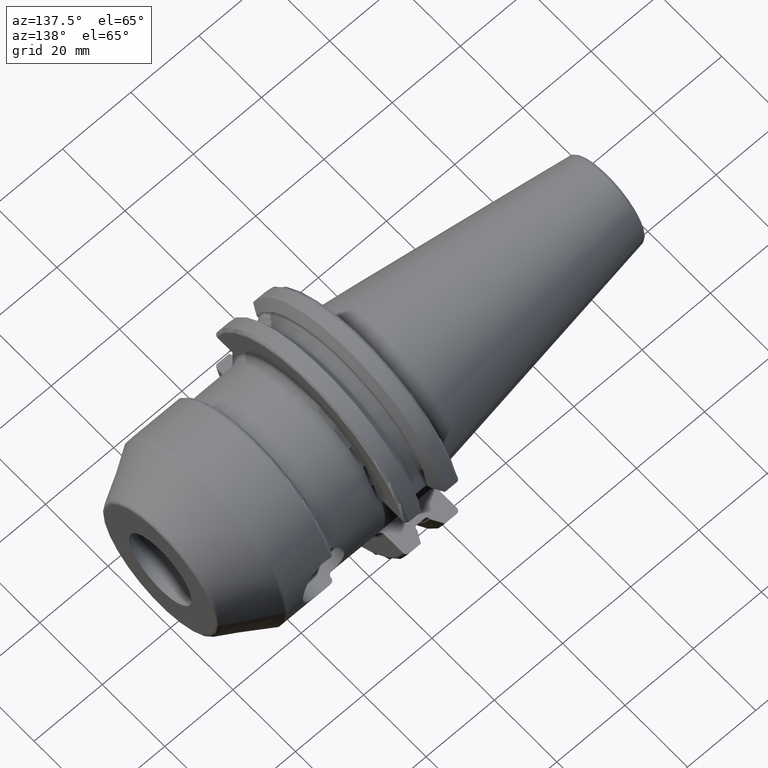
[diagram: clean part render]
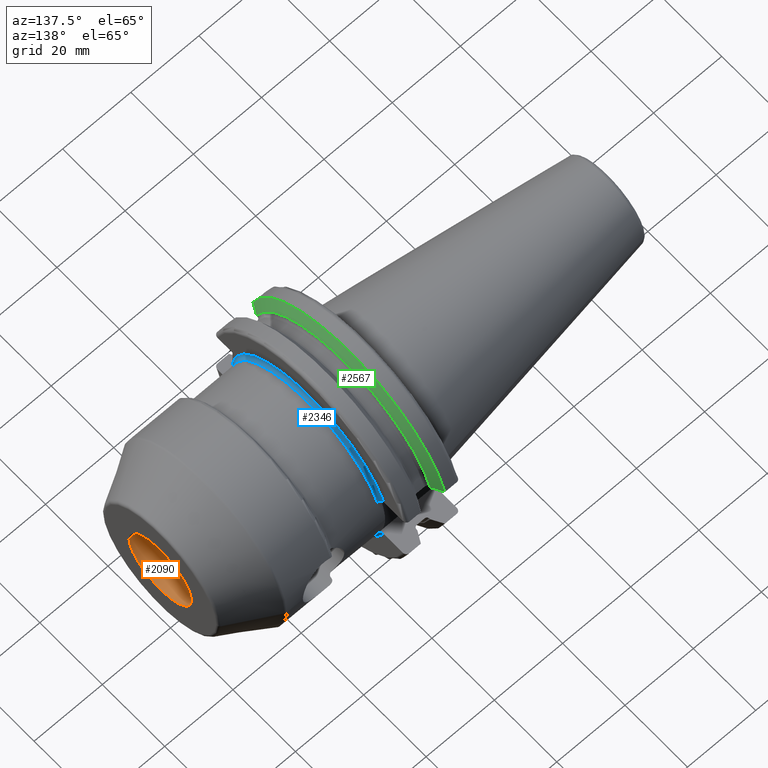
[diagram: same view with three faces highlighted in distinct colors, each labeled with its STEP entity id]
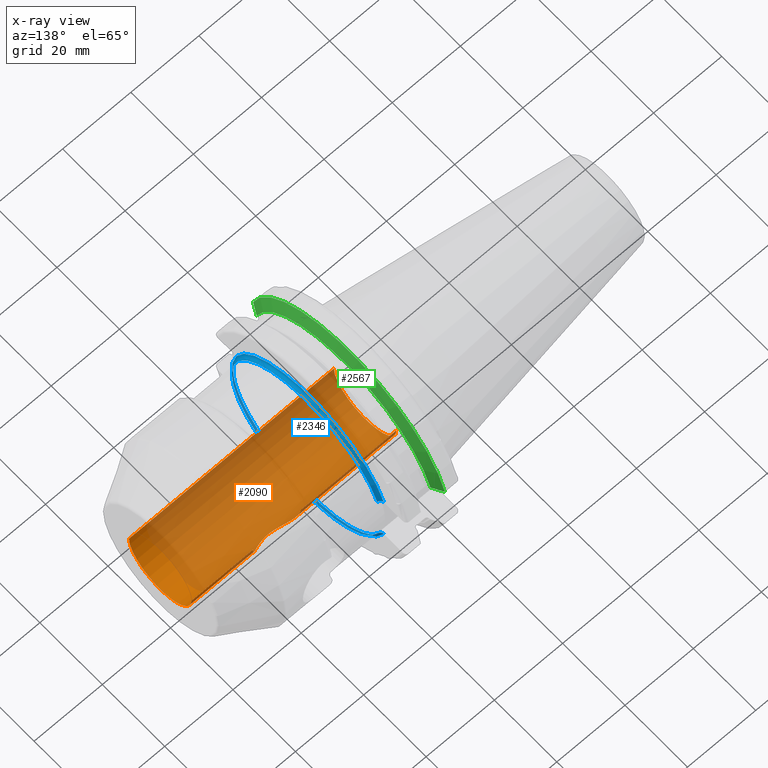
[diagram: x-ray of the same camera — body ghosted, the three highlighted faces saturated]
A machine part, auxiliary view with three faces highlighted in distinct colors.
The next image is the same camera in x-ray (body ghosted, the three faces saturated) — at least one of them is partly hidden behind the body in this view.
Their STEP definitions:

[orange] entity #2090 — the highlighted cylindrical surface (partial cylindrical patch) has radius 10 mm, axis along (1, 0, 0).
#239=CARTESIAN_POINT('',(4.5E1,1.E1,0.E0));
#240=CARTESIAN_POINT('',(4.5E1,1.E1,-3.703224298246E-1));
#241=CARTESIAN_POINT('',(4.494147063933E1,9.958906118185E0,-1.095680688712E0));
#242=CARTESIAN_POINT('',(4.469601184072E1,9.788746908600E0,-2.127587483447E0));
#243=CARTESIAN_POINT('',(4.430984592329E1,9.527647535539E0,-3.089229727453E0));
#244=CARTESIAN_POINT('',(4.378238289719E1,9.185081224078E0,-3.991672600885E0));
#245=CARTESIAN_POINT('',(4.311296868130E1,8.776233688908E0,-4.821587539095E0));
#246=CARTESIAN_POINT('',(4.230201367060E1,8.326177957875E0,-5.558345521736E0));
#247=CARTESIAN_POINT('',(4.138012892757E1,7.884534854530E0,-6.163259870751E0));
#248=CARTESIAN_POINT('',(4.037482626050E1,7.505854408624E0,-6.613427623373E0));
#249=CARTESIAN_POINT('',(3.939322754161E1,7.255183657761E0,-6.883550308105E0));
#250=CARTESIAN_POINT('',(3.843208182535E1,7.133705896825E0,-7.007913250445E0));
#251=CARTESIAN_POINT('',(3.749670615165E1,7.138483185376E0,-7.003106643688E0));
#252=CARTESIAN_POINT('',(3.653871609954E1,7.268805123473E0,-6.869324047158E0));
#253=CARTESIAN_POINT('',(3.556135667698E1,7.526582647206E0,-6.590113990308E0));
#254=CARTESIAN_POINT('',(3.456226557871E1,7.909825888494E0,-6.131015878061E0));
#255=CARTESIAN_POINT('',(3.365354265831E1,8.349678313057E0,-5.522841056459E0));
#256=CARTESIAN_POINT('',(3.285802596632E1,8.793448388434E0,-4.789600230951E0));
#257=CARTESIAN_POINT('',(3.220089983605E1,9.195748864548E0,-3.966336721616E0));
#258=CARTESIAN_POINT('',(3.168145650558E1,9.533464318839E0,-3.070524890406E0));
#259=CARTESIAN_POINT('',(3.130004665180E1,9.791464534561E0,-2.114114874014E0));
#260=CARTESIAN_POINT('',(3.105773501514E1,9.959465672025E0,-1.088346573293E0));
#261=CARTESIAN_POINT('',(3.1E1,1.E1,-3.677950298425E-1));
#262=CARTESIAN_POINT('',(3.1E1,1.E1,0.E0));
#264=DIRECTION('',(-1.E0,0.E0,0.E0));
#265=VECTOR('',#264,1.8E1);
#266=CARTESIAN_POINT('',(6.3E1,1.E1,0.E0));
#267=LINE('',#266,#265);
#268=DIRECTION('',(-1.E0,0.E0,0.E0));
#269=VECTOR('',#268,6.01E1);
#270=CARTESIAN_POINT('',(6.3E1,-1.E1,0.E0));
#271=LINE('',#270,#269);
#272=DIRECTION('',(-1.E0,0.E0,0.E0));
#273=VECTOR('',#272,2.81E1);
#274=CARTESIAN_POINT('',(3.1E1,1.E1,0.E0));
#275=LINE('',#274,#273);
#276=CARTESIAN_POINT('',(3.1E1,1.E1,0.E0));
#298=CARTESIAN_POINT('',(4.5E1,1.E1,0.E0));
#300=CARTESIAN_POINT('',(2.9E0,0.E0,0.E0));
#301=DIRECTION('',(-1.E0,0.E0,0.E0));
#302=DIRECTION('',(0.E0,1.E0,0.E0));
#303=AXIS2_PLACEMENT_3D('',#300,#301,#302);
#315=CARTESIAN_POINT('',(6.3E1,0.E0,0.E0));
#316=DIRECTION('',(1.E0,0.E0,0.E0));
#317=DIRECTION('',(0.E0,-1.E0,0.E0));
#318=AXIS2_PLACEMENT_3D('',#315,#316,#317);
#1684=CARTESIAN_POINT('',(2.9E0,1.E1,0.E0));
#1685=CARTESIAN_POINT('',(2.9E0,-1.E1,0.E0));
#1686=VERTEX_POINT('',#1684);
#1687=VERTEX_POINT('',#1685);
#1688=CARTESIAN_POINT('',(6.3E1,1.E1,0.E0));
#1689=CARTESIAN_POINT('',(6.3E1,-1.E1,0.E0));
#1690=VERTEX_POINT('',#1688);
#1691=VERTEX_POINT('',#1689);
#1720=VERTEX_POINT('',#276);
#1721=VERTEX_POINT('',#298);
#2072=CARTESIAN_POINT('',(-1.05E-1,0.E0,0.E0));
#2073=DIRECTION('',(1.E0,0.E0,0.E0));
#2074=DIRECTION('',(0.E0,-1.E0,0.E0));
#2075=AXIS2_PLACEMENT_3D('',#2072,#2073,#2074);
#2076=CYLINDRICAL_SURFACE('',#2075,1.E1);
#2077=ORIENTED_EDGE('',*,*,#2060,.F.);
#2079=ORIENTED_EDGE('',*,*,#2078,.F.);
#2081=ORIENTED_EDGE('',*,*,#2080,.F.);
#2083=ORIENTED_EDGE('',*,*,#2082,.T.);
#2085=ORIENTED_EDGE('',*,*,#2084,.F.);
#2087=ORIENTED_EDGE('',*,*,#2086,.F.);
#2088=EDGE_LOOP('',(#2077,#2079,#2081,#2083,#2085,#2087));
#2089=FACE_OUTER_BOUND('',#2088,.F.);
#2090=ADVANCED_FACE('',(#2089),#2076,.F.);
#263=B_SPLINE_CURVE_WITH_KNOTS('',3,(#239,#240,#241,#242,#243,#244,#245,#246,
#247,#248,#249,#250,#251,#252,#253,#254,#255,#256,#257,#258,#259,#260,#261,
#262),.UNSPECIFIED.,.F.,.F.,(4,1,1,1,1,1,1,1,1,1,1,1,1,1,1,1,1,1,1,1,1,4),(0.E0,
4.761904761905E-2,9.523809523810E-2,1.428571428571E-1,1.904761904762E-1,
2.380952380952E-1,2.857142857143E-1,3.333333333333E-1,3.809523809524E-1,
4.285714285714E-1,4.761904761905E-1,5.238095238095E-1,5.714285714286E-1,
6.190476190476E-1,6.666666666667E-1,7.142857142857E-1,7.619047619048E-1,
8.095238095238E-1,8.571428571429E-1,9.047619047619E-1,9.523809523810E-1,1.E0),
.UNSPECIFIED.);
#304=CIRCLE('',#303,1.E1);
#319=CIRCLE('',#318,1.E1);
#2060=EDGE_CURVE('',#1721,#1720,#263,.T.);
#2078=EDGE_CURVE('',#1690,#1721,#267,.T.);
#2080=EDGE_CURVE('',#1691,#1690,#319,.T.);
#2082=EDGE_CURVE('',#1691,#1687,#271,.T.);
#2084=EDGE_CURVE('',#1686,#1687,#304,.T.);
#2086=EDGE_CURVE('',#1720,#1686,#275,.T.);

[blue] entity #2346 — the highlighted toroidal blend (fillet) surface has major radius 25 mm and minor (blend) radius 1 mm.
#162=CARTESIAN_POINT('',(2.005E1,0.E0,0.E0));
#163=DIRECTION('',(1.E0,0.E0,0.E0));
#164=DIRECTION('',(0.E0,9.413255281782E-1,3.375E-1));
#165=AXIS2_PLACEMENT_3D('',#162,#163,#164);
#399=CARTESIAN_POINT('',(2.005E1,0.E0,0.E0));
#400=DIRECTION('',(1.E0,0.E0,0.E0));
#401=DIRECTION('',(0.E0,-1.E0,0.E0));
#402=AXIS2_PLACEMENT_3D('',#399,#400,#401);
#425=CARTESIAN_POINT('',(1.905E1,0.E0,0.E0));
#426=DIRECTION('',(1.E0,0.E0,0.E0));
#427=DIRECTION('',(0.E0,-9.939928690460E-1,-1.094448549989E-1));
#428=AXIS2_PLACEMENT_3D('',#425,#426,#427);
#458=CARTESIAN_POINT('',(1.905E1,0.E0,0.E0));
#459=DIRECTION('',(1.E0,0.E0,0.E0));
#460=DIRECTION('',(0.E0,9.460570807303E-1,3.24E-1));
#461=AXIS2_PLACEMENT_3D('',#458,#459,#460);
#467=CARTESIAN_POINT('',(2.005E1,2.259181267628E1,-8.1E0));
#468=CARTESIAN_POINT('',(1.996471559679E1,2.259181267628E1,-8.1E0));
#469=CARTESIAN_POINT('',(1.979872990014E1,2.261366886611E1,-8.1E0));
#470=CARTESIAN_POINT('',(1.954992991274E1,2.271974591536E1,-8.1E0));
#471=CARTESIAN_POINT('',(1.934199978608E1,2.288730200111E1,-8.1E0));
#472=CARTESIAN_POINT('',(1.917951445041E1,2.310525621382E1,-8.1E0));
#473=CARTESIAN_POINT('',(1.907329022132E1,2.337183787163E1,-8.1E0));
#474=CARTESIAN_POINT('',(1.905E1,2.355574199375E1,-8.1E0));
#475=CARTESIAN_POINT('',(1.905E1,2.365142701826E1,-8.1E0));
#477=CARTESIAN_POINT('',(1.905E1,-2.484999615226E1,-2.735083155832E0));
#478=CARTESIAN_POINT('',(1.905E1,-2.484999615226E1,-2.126118093178E0));
#479=CARTESIAN_POINT('',(1.906190707528E1,-2.485000062129E1,
-9.087239020907E-1));
#480=CARTESIAN_POINT('',(1.906190711665E1,-2.485000359708E1,9.099307624885E-1));
#481=CARTESIAN_POINT('',(1.905E1,-2.484999119261E1,2.122483506519E0));
#482=CARTESIAN_POINT('',(1.905E1,-2.484999119261E1,2.731450319914E0));
#484=CARTESIAN_POINT('',(1.905E1,2.365142701826E1,8.1E0));
#485=CARTESIAN_POINT('',(1.905E1,2.355574199375E1,8.1E0));
#486=CARTESIAN_POINT('',(1.907329022132E1,2.337183787163E1,8.1E0));
#487=CARTESIAN_POINT('',(1.917951445041E1,2.310525621382E1,8.1E0));
#488=CARTESIAN_POINT('',(1.934199978608E1,2.288730200111E1,8.1E0));
#489=CARTESIAN_POINT('',(1.954992991274E1,2.271974591536E1,8.1E0));
#490=CARTESIAN_POINT('',(1.979872990014E1,2.261366886611E1,8.1E0));
#491=CARTESIAN_POINT('',(1.996471559679E1,2.259181267628E1,8.1E0));
#492=CARTESIAN_POINT('',(2.005E1,2.259181267628E1,8.1E0));
#1728=CARTESIAN_POINT('',(1.905E1,-2.484999615226E1,-2.735083155832E0));
#1729=VERTEX_POINT('',#1728);
#1730=CARTESIAN_POINT('',(1.905E1,-2.484999119261E1,2.731450319914E0));
#1731=VERTEX_POINT('',#1730);
#1736=CARTESIAN_POINT('',(1.905E1,2.365142701826E1,8.1E0));
#1737=VERTEX_POINT('',#1736);
#1738=CARTESIAN_POINT('',(1.905E1,2.365142701826E1,-8.1E0));
#1739=VERTEX_POINT('',#1738);
#1740=VERTEX_POINT('',#492);
#1741=VERTEX_POINT('',#467);
#1742=CARTESIAN_POINT('',(2.005E1,-2.4E1,0.E0));
#1743=VERTEX_POINT('',#1742);
#2332=CARTESIAN_POINT('',(2.005E1,0.E0,0.E0));
#2333=DIRECTION('',(1.E0,0.E0,0.E0));
#2334=DIRECTION('',(0.E0,1.485959642860E-3,-9.999988959614E-1));
#2335=AXIS2_PLACEMENT_3D('',#2332,#2333,#2334);
#2336=TOROIDAL_SURFACE('',#2335,2.5E1,1.E0);
#2337=ORIENTED_EDGE('',*,*,#1990,.T.);
#2338=ORIENTED_EDGE('',*,*,#2225,.T.);
#2339=ORIENTED_EDGE('',*,*,#2240,.T.);
#2340=ORIENTED_EDGE('',*,*,#2279,.F.);
#2341=ORIENTED_EDGE('',*,*,#2320,.T.);
#2342=ORIENTED_EDGE('',*,*,#2309,.F.);
#2343=ORIENTED_EDGE('',*,*,#1947,.T.);
#2344=EDGE_LOOP('',(#2337,#2338,#2339,#2340,#2341,#2342,#2343));
#2345=FACE_OUTER_BOUND('',#2344,.F.);
#2346=ADVANCED_FACE('',(#2345),#2336,.F.);
#166=CIRCLE('',#165,2.4E1);
#403=CIRCLE('',#402,2.4E1);
#429=CIRCLE('',#428,2.5E1);
#462=CIRCLE('',#461,2.5E1);
#476=B_SPLINE_CURVE_WITH_KNOTS('',3,(#467,#468,#469,#470,#471,#472,#473,#474,
#475),.UNSPECIFIED.,.F.,.F.,(4,1,1,1,1,1,4),(0.E0,1.666666666667E-1,
3.333333333333E-1,5.E-1,6.666666666667E-1,8.333333333333E-1,1.E0),
.UNSPECIFIED.);
#483=B_SPLINE_CURVE_WITH_KNOTS('',3,(#477,#478,#479,#480,#481,#482),
.UNSPECIFIED.,.F.,.F.,(4,1,1,4),(0.E0,3.333333333333E-1,6.666666666667E-1,1.E0),
.UNSPECIFIED.);
#493=B_SPLINE_CURVE_WITH_KNOTS('',3,(#484,#485,#486,#487,#488,#489,#490,#491,
#492),.UNSPECIFIED.,.F.,.F.,(4,1,1,1,1,1,4),(0.E0,1.666666666667E-1,
3.333333333333E-1,5.E-1,6.666666666667E-1,8.333333333333E-1,1.E0),
.UNSPECIFIED.);
#1947=EDGE_CURVE('',#1737,#1740,#493,.T.);
#1990=EDGE_CURVE('',#1740,#1743,#166,.T.);
#2225=EDGE_CURVE('',#1743,#1741,#403,.T.);
#2240=EDGE_CURVE('',#1741,#1739,#476,.T.);
#2279=EDGE_CURVE('',#1729,#1739,#429,.T.);
#2309=EDGE_CURVE('',#1737,#1731,#462,.T.);
#2320=EDGE_CURVE('',#1729,#1731,#483,.T.);

[green] entity #2567 — the highlighted conical surface has half-angle 60 deg.
#502=CARTESIAN_POINT('',(9.2625E0,0.E0,0.E0));
#503=DIRECTION('',(1.E0,0.E0,0.E0));
#504=DIRECTION('',(0.E0,9.600957415706E-1,2.796715341576E-1));
#505=AXIS2_PLACEMENT_3D('',#502,#503,#504);
#662=CARTESIAN_POINT('',(7.645946479578E0,0.E0,0.E0));
#663=DIRECTION('',(1.E0,0.E0,0.E0));
#664=DIRECTION('',(0.E0,9.669363825036E-1,2.550177095632E-1));
#665=AXIS2_PLACEMENT_3D('',#662,#663,#664);
#689=CARTESIAN_POINT('',(7.645946479578E0,3.071231684927E1,8.1E0));
#690=CARTESIAN_POINT('',(7.831754864835E0,3.037948258059E1,8.1E0));
#691=CARTESIAN_POINT('',(8.199252814970E0,2.972048825911E1,8.1E0));
#692=CARTESIAN_POINT('',(8.738047920141E0,2.875212438619E1,8.1E0));
#693=CARTESIAN_POINT('',(9.089058006747E0,2.811971443922E1,8.1E0));
#694=CARTESIAN_POINT('',(9.2625E0,2.780681820245E1,8.1E0));
#696=CARTESIAN_POINT('',(9.2625E0,-2.780681820245E1,8.1E0));
#697=CARTESIAN_POINT('',(9.089138247115E0,-2.811956968242E1,8.1E0));
#698=CARTESIAN_POINT('',(8.738235514848E0,-2.875178670793E1,8.1E0));
#699=CARTESIAN_POINT('',(8.199445066245E0,-2.972014324708E1,8.1E0));
#700=CARTESIAN_POINT('',(7.831837395590E0,-3.037933474515E1,8.1E0));
#701=CARTESIAN_POINT('',(7.645946479578E0,-3.071231684927E1,8.1E0));
#1543=CARTESIAN_POINT('',(9.2625E0,2.780681820245E1,8.1E0));
#1545=VERTEX_POINT('',#1543);
#1555=CARTESIAN_POINT('',(9.2625E0,-2.780681820245E1,8.1E0));
#1557=VERTEX_POINT('',#1555);
#1597=VERTEX_POINT('',#689);
#1598=VERTEX_POINT('',#701);
#2555=CARTESIAN_POINT('',(8.454223239789E0,0.E0,0.E0));
#2556=DIRECTION('',(-1.E0,0.E0,0.E0));
#2557=DIRECTION('',(0.E0,1.E0,0.E0));
#2558=AXIS2_PLACEMENT_3D('',#2555,#2556,#2557);
#2559=CONICAL_SURFACE('',#2558,3.036252358474E1,6.E1);
#2560=ORIENTED_EDGE('',*,*,#1967,.T.);
#2561=ORIENTED_EDGE('',*,*,#2391,.T.);
#2563=ORIENTED_EDGE('',*,*,#2562,.T.);
#2564=ORIENTED_EDGE('',*,*,#2532,.F.);
#2565=EDGE_LOOP('',(#2560,#2561,#2563,#2564));
#2566=FACE_OUTER_BOUND('',#2565,.F.);
#2567=ADVANCED_FACE('',(#2566),#2559,.T.);
#506=CIRCLE('',#505,2.896254716948E1);
#666=CIRCLE('',#665,3.17625E1);
#695=B_SPLINE_CURVE_WITH_KNOTS('',3,(#689,#690,#691,#692,#693,#694),
.UNSPECIFIED.,.F.,.F.,(4,1,1,4),(0.E0,3.333333333333E-1,6.666666666667E-1,1.E0),
.UNSPECIFIED.);
#702=B_SPLINE_CURVE_WITH_KNOTS('',3,(#696,#697,#698,#699,#700,#701),
.UNSPECIFIED.,.F.,.F.,(4,1,1,4),(0.E0,3.333333333333E-1,6.666666666667E-1,1.E0),
.UNSPECIFIED.);
#1967=EDGE_CURVE('',#1597,#1545,#695,.T.);
#2391=EDGE_CURVE('',#1545,#1557,#506,.T.);
#2532=EDGE_CURVE('',#1597,#1598,#666,.T.);
#2562=EDGE_CURVE('',#1557,#1598,#702,.T.);